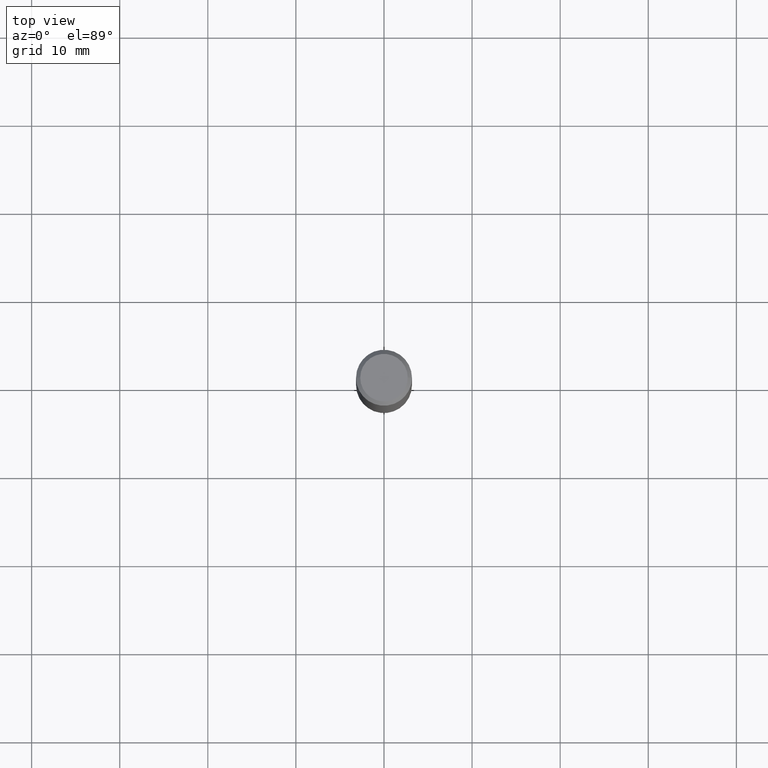
[diagram: clean part render]
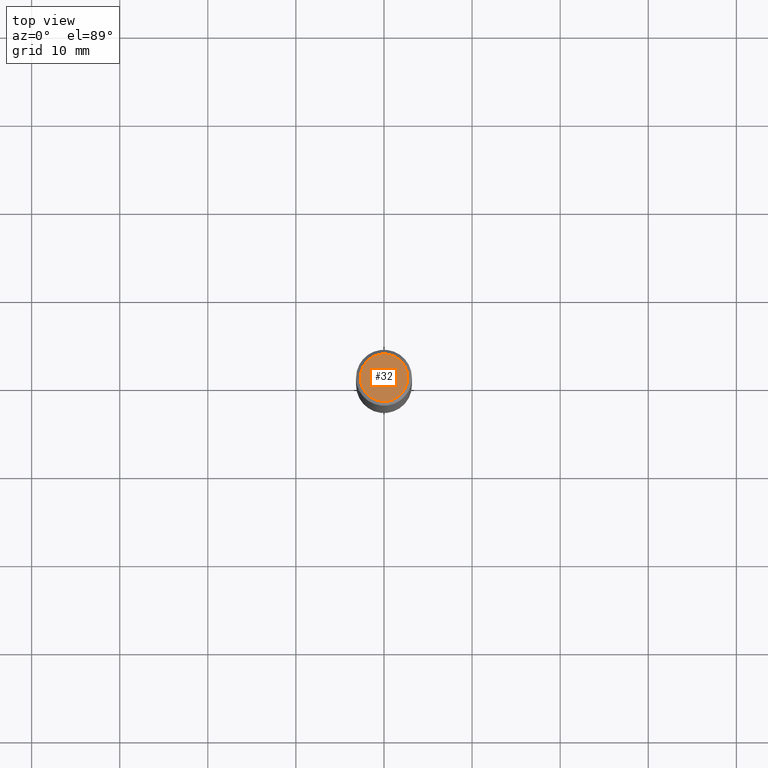
[diagram: same view with one face highlighted and labeled with its STEP entity id]
A machine part, top view. The second image highlights one B-rep face of the part: STEP entity #32.
In plain terms, the highlighted planar face has unit normal (0, -0, -1).
Its self-contained STEP definition (entity closure, byte-faithful):
#32 = ADVANCED_FACE ( 'NONE', ( #462 ), #80, .F. ) ;
#43 = CARTESIAN_POINT ( 'NONE',  ( 3.182012767528659158E-46, -4.543070911265533518E-32, -1.301187224094062675E-17 ) ) ;
#53 = VERTEX_POINT ( 'NONE', #374 ) ;
#80 = PLANE ( 'NONE',  #308 ) ;
#86 = EDGE_CURVE ( 'NONE', #53, #381, #410, .T. ) ;
#103 = AXIS2_PLACEMENT_3D ( 'NONE', #239, #155, #118 ) ;
#118 = DIRECTION ( 'NONE',  ( 1.000000000000000000, -6.982962677686266711E-15, 4.877714189860772023E-29 ) ) ;
#155 = DIRECTION ( 'NONE',  ( -2.445468806185136597E-29, 3.491481338843145583E-15, 1.000000000000000000 ) ) ;
#156 = ORIENTED_EDGE ( 'NONE', *, *, #86, .T. ) ;
#189 = DIRECTION ( 'NONE',  ( 1.000000000000000000, -6.982962677686266711E-15, 4.877714189860772023E-29 ) ) ;
#236 = DIRECTION ( 'NONE',  ( 2.438088387897960049E-29, -3.491481338843145188E-15, -1.000000000000000000 ) ) ;
#239 = CARTESIAN_POINT ( 'NONE',  ( 6.364025535057318316E-46, -9.086141822531067035E-32, -2.602374448188125350E-17 ) ) ;
#241 = CIRCLE ( 'NONE', #294, 0.1062499999999999972 ) ;
#266 = CARTESIAN_POINT ( 'NONE',  ( 6.364025535057318316E-46, -9.086141822531067035E-32, -2.602374448188125350E-17 ) ) ;
#277 = ORIENTED_EDGE ( 'NONE', *, *, #404, .T. ) ;
#294 = AXIS2_PLACEMENT_3D ( 'NONE', #266, #414, #189 ) ;
#308 = AXIS2_PLACEMENT_3D ( 'NONE', #43, #236, #380 ) ;
#370 = CARTESIAN_POINT ( 'NONE',  ( -0.1062499999999999972, 7.746724220558198188E-16, -2.602374448188655674E-17 ) ) ;
#374 = CARTESIAN_POINT ( 'NONE',  ( 0.1062499999999999972, -8.259777185439880671E-16, -2.602374448187577153E-17 ) ) ;
#380 = DIRECTION ( 'NONE',  ( -1.000000000000000000, 6.982962677686265922E-15, -4.876176775795935793E-29 ) ) ;
#381 = VERTEX_POINT ( 'NONE', #370 ) ;
#404 = EDGE_CURVE ( 'NONE', #381, #53, #241, .T. ) ;
#410 = CIRCLE ( 'NONE', #103, 0.1062499999999999972 ) ;
#414 = DIRECTION ( 'NONE',  ( -2.445468806185136597E-29, 3.491481338843145583E-15, 1.000000000000000000 ) ) ;
#462 = FACE_OUTER_BOUND ( 'NONE', #463, .T. ) ;
#463 = EDGE_LOOP ( 'NONE', ( #277, #156 ) ) ;